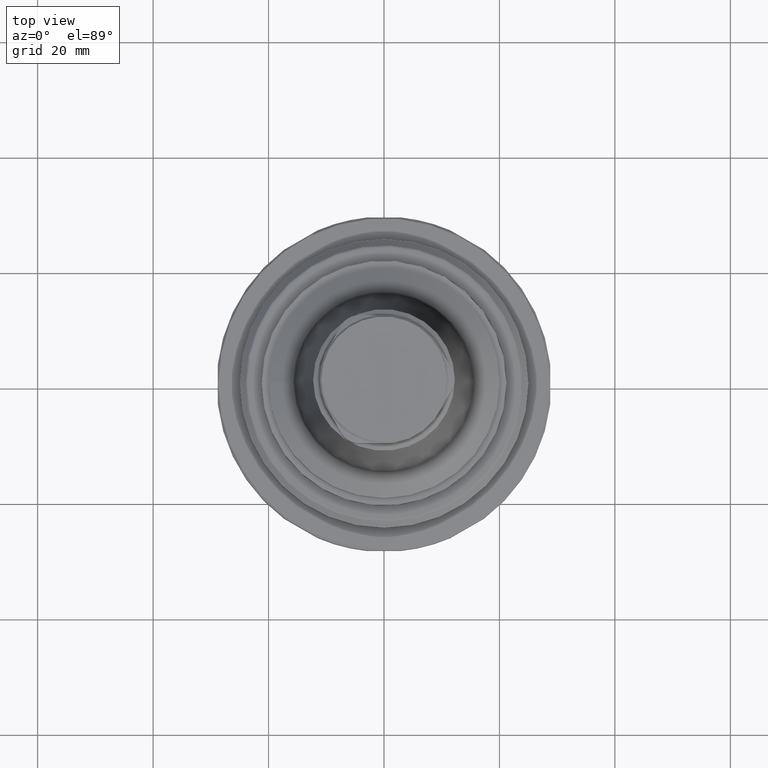
[diagram: clean part render]
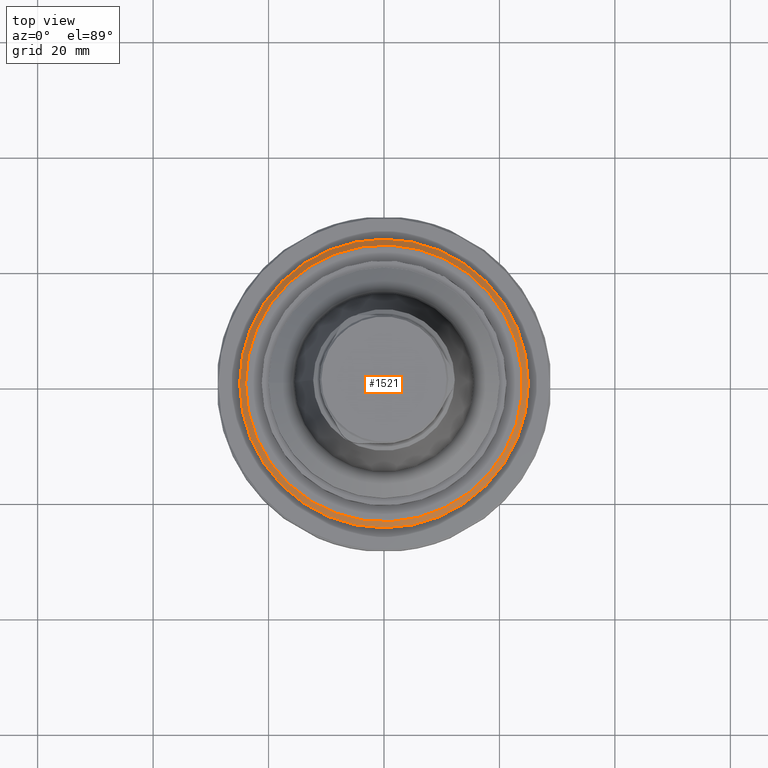
[diagram: same view with one face highlighted and labeled with its STEP entity id]
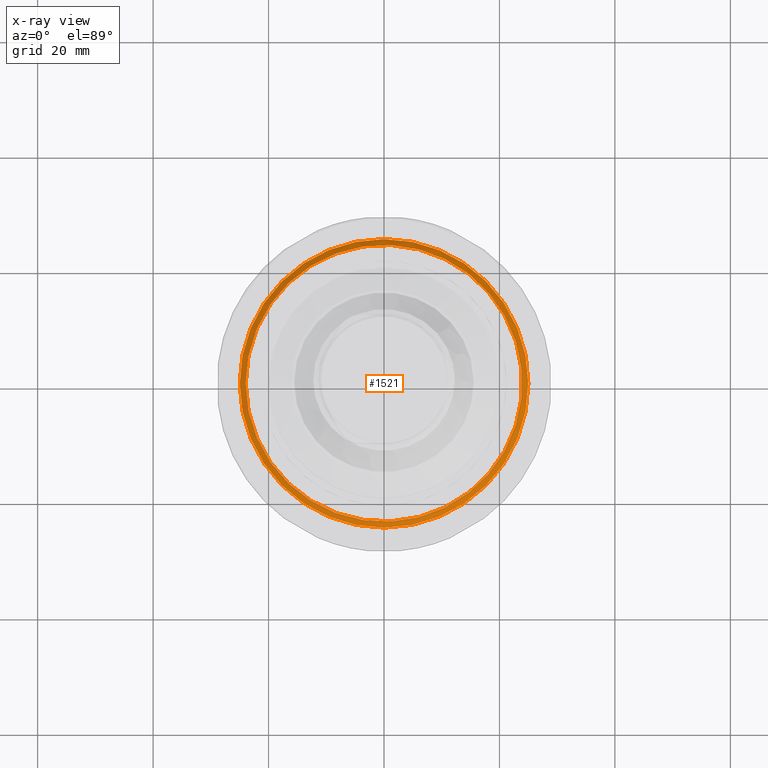
[diagram: x-ray of the same camera — body ghosted, the highlighted face saturated]
A machine part, top view. The second image highlights one B-rep face of the part: STEP entity #1521.
The next image is the same camera in x-ray: the body ghosted, the highlighted face saturated — about 0% of this face is hidden behind the body in this view.
In plain terms, the highlighted conical surface has half-angle 45 deg.
Its self-contained STEP definition (entity closure, byte-faithful):
#277=CONICAL_SURFACE('',#1708,23.9757350979542,0.785398163397447);
#672=ORIENTED_EDGE('',*,*,#888,.F.);
#673=ORIENTED_EDGE('',*,*,#887,.T.);
#887=EDGE_CURVE('',#1034,#1034,#1111,.T.);
#888=EDGE_CURVE('',#1035,#1035,#1112,.T.);
#1034=VERTEX_POINT('',#2749);
#1035=VERTEX_POINT('',#2752);
#1111=CIRCLE('',#1707,23.9757350979542);
#1112=CIRCLE('',#1709,25.);
#1239=EDGE_LOOP('',(#672));
#1240=EDGE_LOOP('',(#673));
#1377=FACE_BOUND('',#1239,.T.);
#1378=FACE_BOUND('',#1240,.T.);
#1521=ADVANCED_FACE('',(#1377,#1378),#277,.T.);
#1707=AXIS2_PLACEMENT_3D('',#2748,#2124,#2125);
#1708=AXIS2_PLACEMENT_3D('',#2750,#2126,#2127);
#1709=AXIS2_PLACEMENT_3D('',#2751,#2128,#2129);
#2124=DIRECTION('',(1.22464605849178E-16,1.04225259501902E-17,-1.));
#2125=DIRECTION('',(-1.,-1.84889274661175E-32,-1.22464605849178E-16));
#2126=DIRECTION('',(1.22464605849178E-16,1.04225259501902E-17,-1.));
#2127=DIRECTION('',(-1.,-1.84889274661175E-32,-1.22464605849178E-16));
#2128=DIRECTION('',(1.22464605849178E-16,1.04225259501902E-17,-1.));
#2129=DIRECTION('',(-1.,-1.84889274661175E-32,-1.22464605849178E-16));
#2748=CARTESIAN_POINT('',(4.43882318014979E-15,3.30991814693567E-17,4.82426490204584));
#2749=CARTESIAN_POINT('',(-23.9757350979542,3.30991814693562E-17,4.82426490204583));
#2750=CARTESIAN_POINT('',(4.43882318014979E-15,3.30991814693567E-17,4.82426490204584));
#2751=CARTESIAN_POINT('',(4.56425937766398E-15,4.37746089907985E-17,3.8));
#2752=CARTESIAN_POINT('',(-25.,4.3774608990798E-17,3.79999999999999));